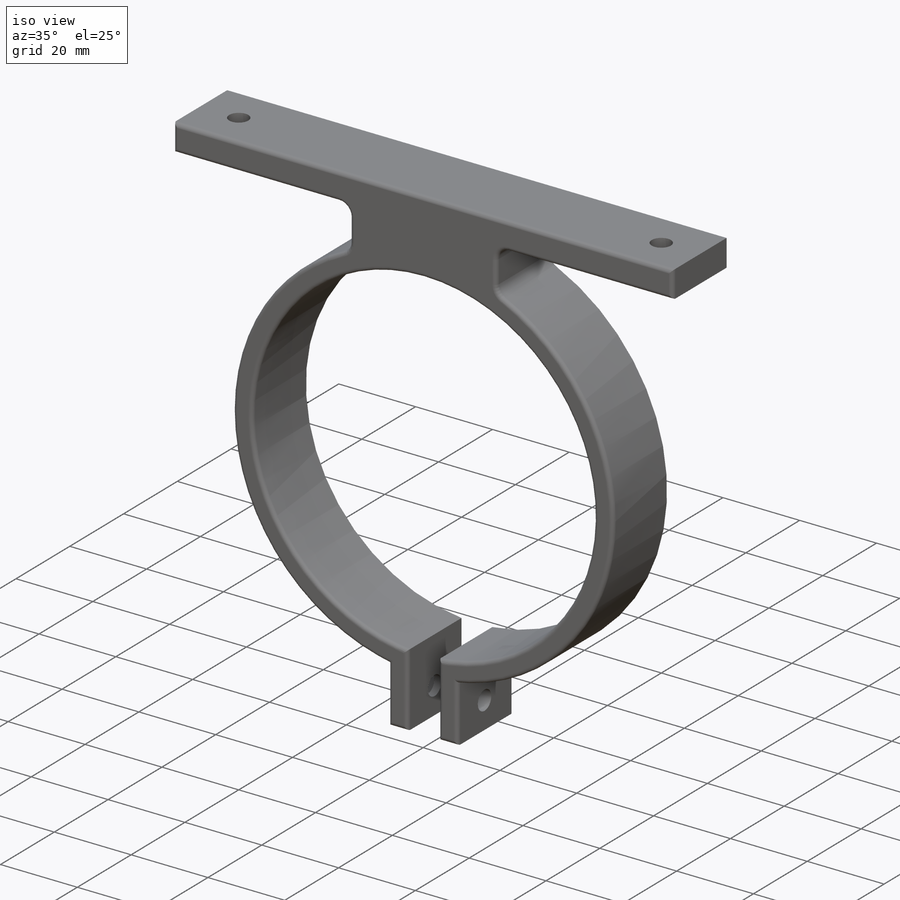
[diagram: iso view]
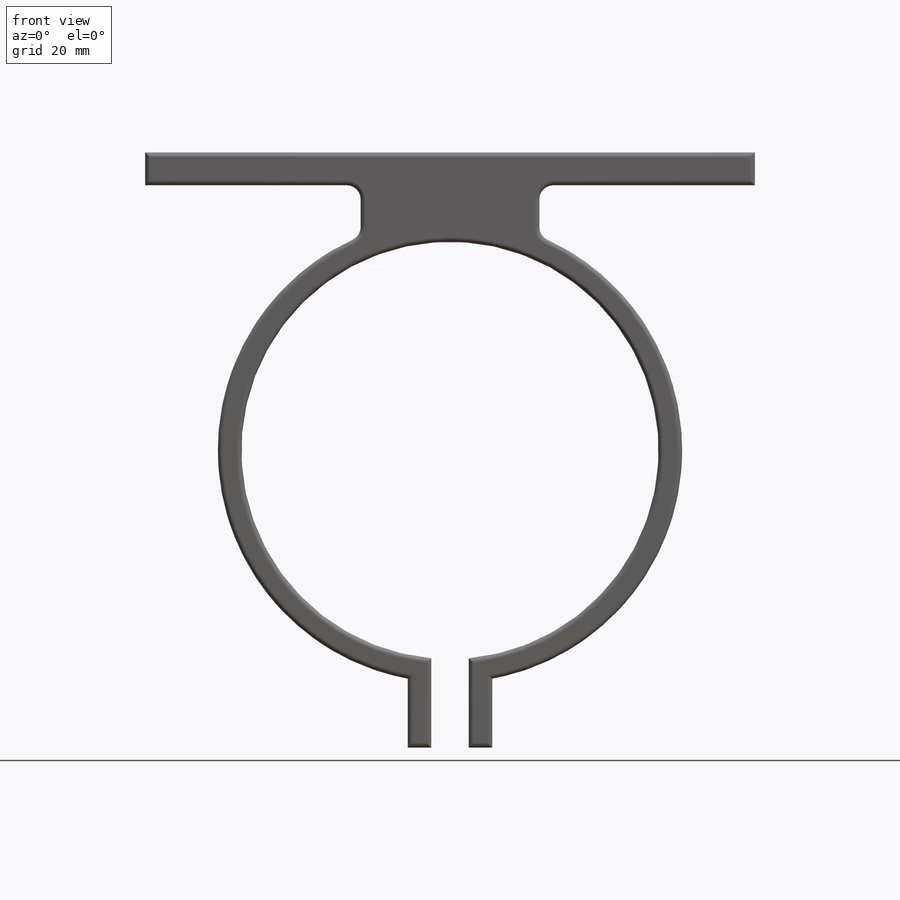
[diagram: front view]
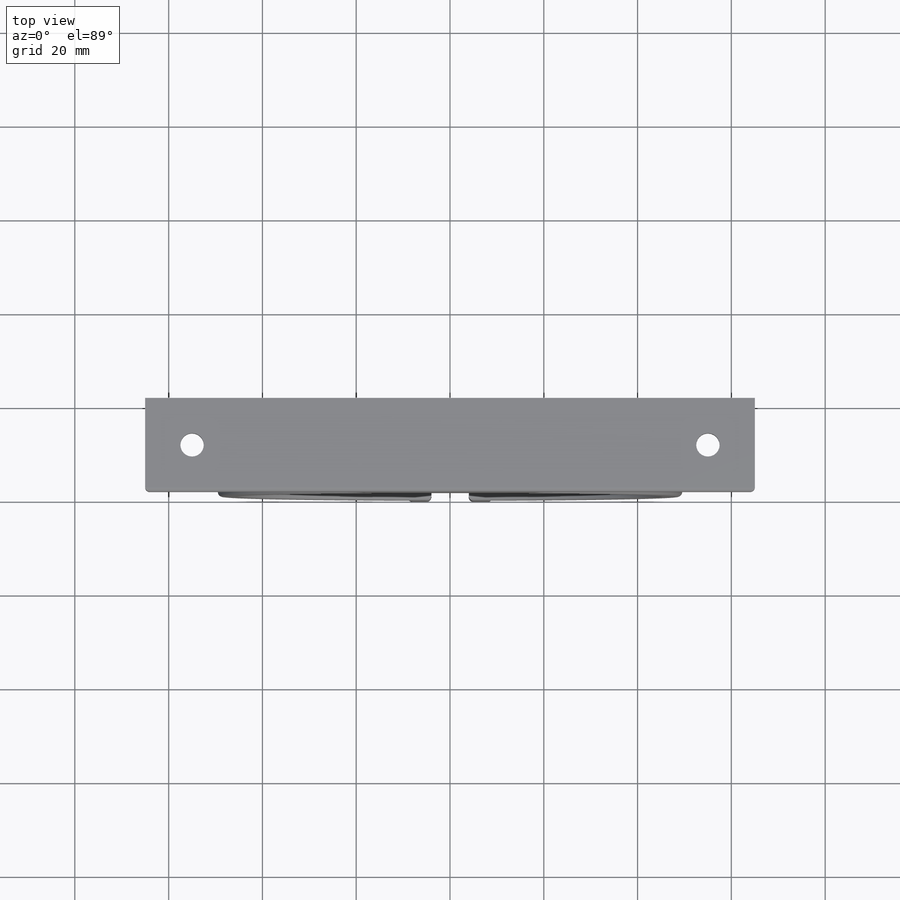
[diagram: top view]
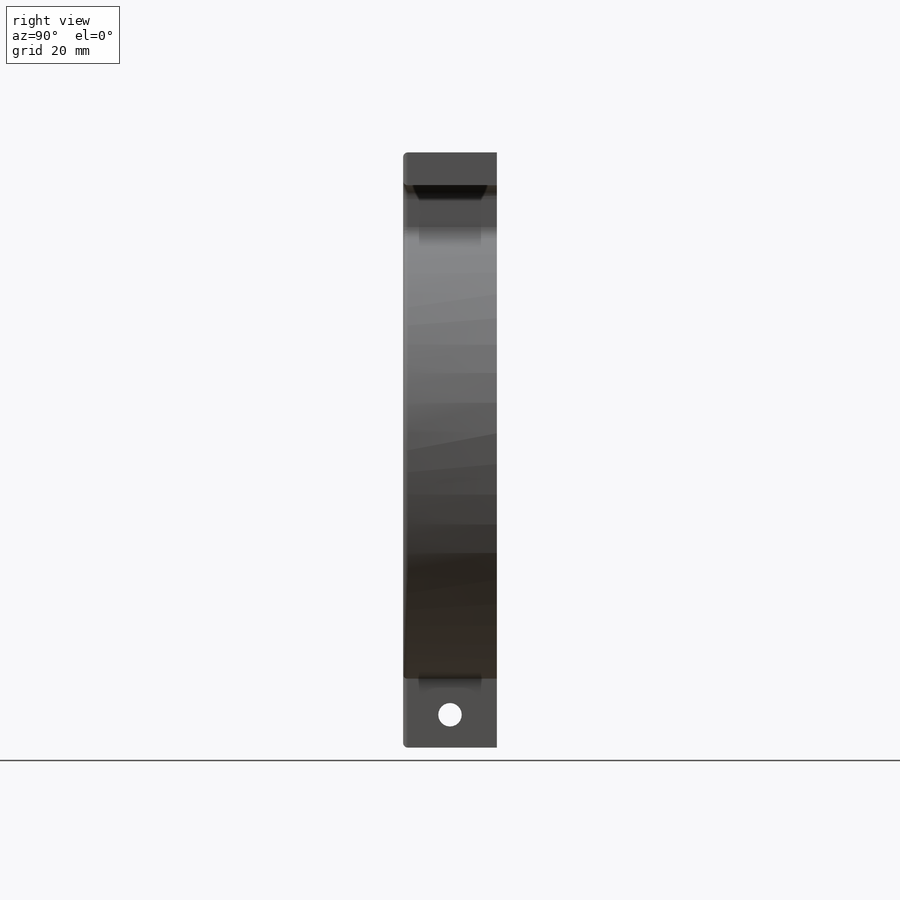
[diagram: right view]
SOLIDWORKS PART (.sldprt)
format: sldprt  version: not decoded by parser v0  size: 320,512 bytes
history: native  units: mm
features: sketch x4, cut_extrude x3, fillet x2, plane x2, material x1, extrude x1 (+13 scaffold rows collapsed)
feature tree (26):
  scaffold x13  (default folders/planes/origin — collapsed)
  material  "Material <not specified>"
  sketch  "Sketch1"  dims[c1.D1=92.0mm c1.D5=44.5mm c2.D1=4.0mm c2.D2=4.0mm c2.D3=19.05mm c2.D4=19.05mm c2.D7=65.0mm c2.D8=65.0mm c2.D9=7.0mm c2.D10=9.05mm c3.D9=19.05mm c3.D10=19.05mm c3.D11=7.0mm c3.D12=~45.890297mm c4.D12=~10.314286deg c4.D6=5.0mm]
  extrude  "Boss-Extrude1"  Depth=20mm
  fillet  "Fillet1"  Radius=3mm
  plane  "Plane1"  Offset=0mm
  sketch  "Sketch2"  dims[c1.D1=~6.897381mm c1.D3=~4.817177mm c2.D1=10.0mm c2.D2=10.0mm c2.D3=15.0mm c2.D4=10.0mm c3.D3=10.0mm c3.D4=10.0mm c3.D5=140.0mm]
  cut_extrude  "Cut-Extrude1"  [1 undecoded]
  plane  "Plane2"  Offset=0mm
  sketch  "Sketch3"  dims[c1.D1=5.0mm c1.D3=9.7mm c2.D1=10.0mm c2.D2=7.0mm c2.D3=9.7mm c3.D3=~142.909905deg]
  cut_extrude  "Cut-Extrude2"  [1 undecoded]
  cut_extrude  "Cut-Extrude3"  [1 undecoded]
  sketch  "Sketch3<4>"  dims[D1=3.175mm]
  fillet  "Fillet2"  Radius=1mm
decode coverage: 7 of 10 modeling features carry decoded parameters
note: ~ marks probable driven/reference dimensions
note: 3 parameter values undecoded
summary: no parameter record found for 3 features
note: suppression state not decoded; provenance and decode notes live in map.json
